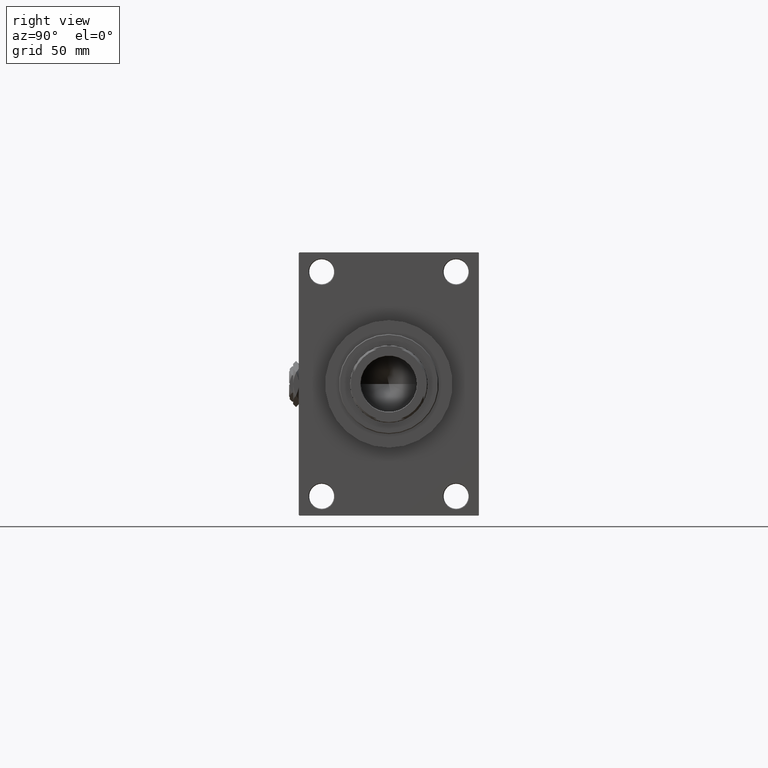
[diagram: clean part render]
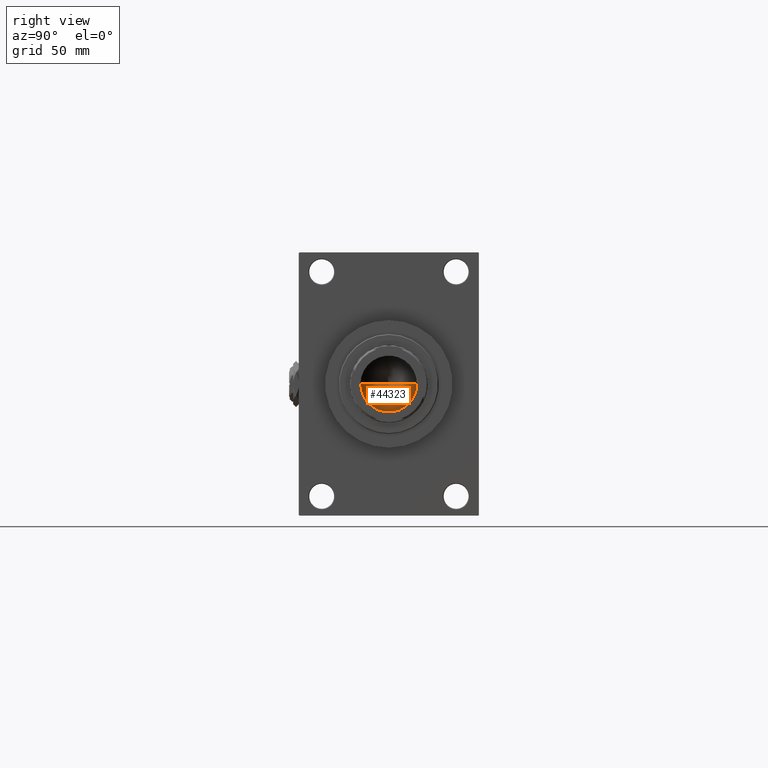
[diagram: same view with one face highlighted and labeled with its STEP entity id]
A machine part, right view. The second image highlights one B-rep face of the part: STEP entity #44323.
In plain terms, the highlighted conical surface has half-angle 59 deg.
Its self-contained STEP definition (entity closure, byte-faithful):
#1905 = AXIS2_PLACEMENT_3D ( 'NONE', #48714, #44933, #10377 ) ;
#2725 = CARTESIAN_POINT ( 'NONE',  ( -1.584115414415908206E-14, 0.000000000000000000, 334.8325724646919070 ) ) ;
#3500 = CARTESIAN_POINT ( 'NONE',  ( 20.24999999999998934, 0.000000000000000000, 347.0000000000000568 ) ) ;
#9014 = EDGE_CURVE ( 'NONE', #36437, #46997, #24506, .T. ) ;
#9773 = ORIENTED_EDGE ( 'NONE', *, *, #38324, .T. ) ;
#10377 = DIRECTION ( 'NONE',  ( 1.000000000000000000, 0.000000000000000000, 0.000000000000000000 ) ) ;
#11025 = EDGE_CURVE ( 'NONE', #36437, #30183, #42902, .T. ) ;
#11877 = DIRECTION ( 'NONE',  ( -0.8571673007021112234, 1.049727191138617340E-16, 0.5150380749100560429 ) ) ;
#14865 = CARTESIAN_POINT ( 'NONE',  ( -20.24999999999998934, 2.479909768273389117E-15, 347.0000000000000568 ) ) ;
#15255 = ORIENTED_EDGE ( 'NONE', *, *, #11025, .F. ) ;
#19455 = CARTESIAN_POINT ( 'NONE',  ( -20.24999999999998934, 2.479909768273389117E-15, 347.0000000000000568 ) ) ;
#22627 = EDGE_LOOP ( 'NONE', ( #15255, #40649, #9773 ) ) ;
#24506 = LINE ( 'NONE', #44425, #27839 ) ;
#27839 = VECTOR ( 'NONE', #36113, 1000.000000000000000 ) ;
#30094 = CIRCLE ( 'NONE', #1905, 20.24999999999998934 ) ;
#30110 = DIRECTION ( 'NONE',  ( -0.000000000000000000, -0.000000000000000000, 1.000000000000000000 ) ) ;
#30183 = VERTEX_POINT ( 'NONE', #14865 ) ;
#35931 = CONICAL_SURFACE ( 'NONE', #46400, 20.24999999999998934, 1.029744258676652313 ) ;
#36113 = DIRECTION ( 'NONE',  ( 0.8571673007021112234, 0.000000000000000000, 0.5150380749100560429 ) ) ;
#36437 = VERTEX_POINT ( 'NONE', #2725 ) ;
#37699 = DIRECTION ( 'NONE',  ( 1.000000000000000000, 0.000000000000000000, 0.000000000000000000 ) ) ;
#38324 = EDGE_CURVE ( 'NONE', #46997, #30183, #30094, .T. ) ;
#38676 = FACE_OUTER_BOUND ( 'NONE', #22627, .T. ) ;
#40649 = ORIENTED_EDGE ( 'NONE', *, *, #9014, .T. ) ;
#42902 = LINE ( 'NONE', #19455, #49656 ) ;
#44323 = ADVANCED_FACE ( 'NONE', ( #38676 ), #35931, .F. ) ;
#44425 = CARTESIAN_POINT ( 'NONE',  ( 20.24999999999998934, 0.000000000000000000, 347.0000000000000568 ) ) ;
#44933 = DIRECTION ( 'NONE',  ( -0.000000000000000000, -0.000000000000000000, 1.000000000000000000 ) ) ;
#46400 = AXIS2_PLACEMENT_3D ( 'NONE', #49769, #30110, #37699 ) ;
#46997 = VERTEX_POINT ( 'NONE', #3500 ) ;
#48714 = CARTESIAN_POINT ( 'NONE',  ( 0.000000000000000000, 0.000000000000000000, 347.0000000000000568 ) ) ;
#49656 = VECTOR ( 'NONE', #11877, 1000.000000000000000 ) ;
#49769 = CARTESIAN_POINT ( 'NONE',  ( 0.000000000000000000, 0.000000000000000000, 347.0000000000000568 ) ) ;